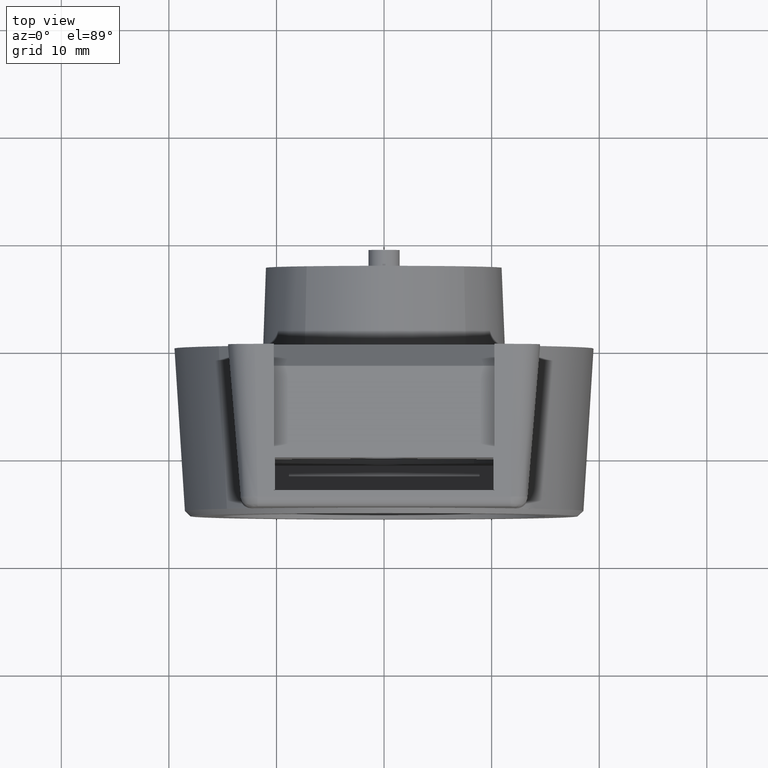
[diagram: clean part render]
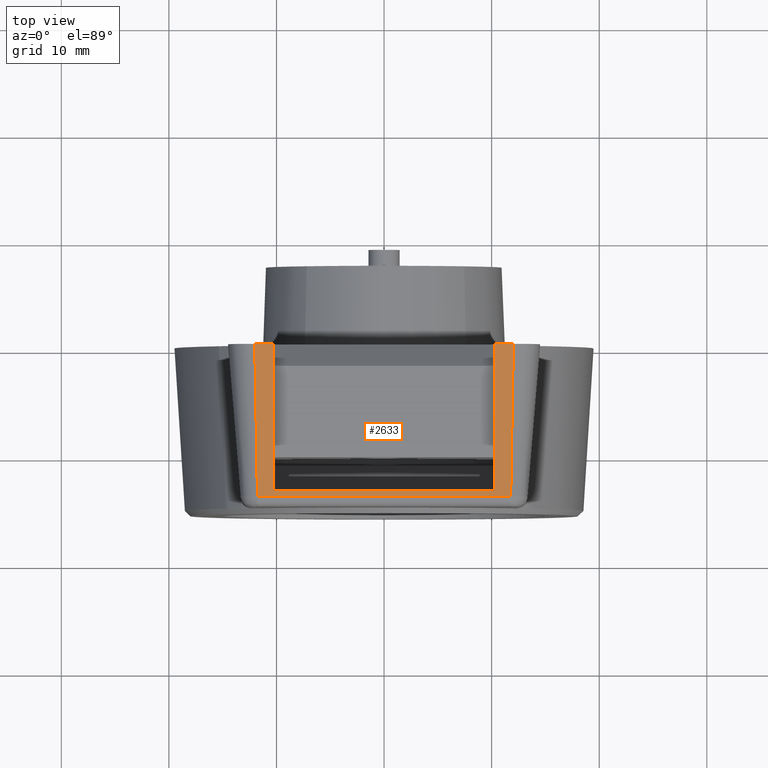
[diagram: same view with one face highlighted and labeled with its STEP entity id]
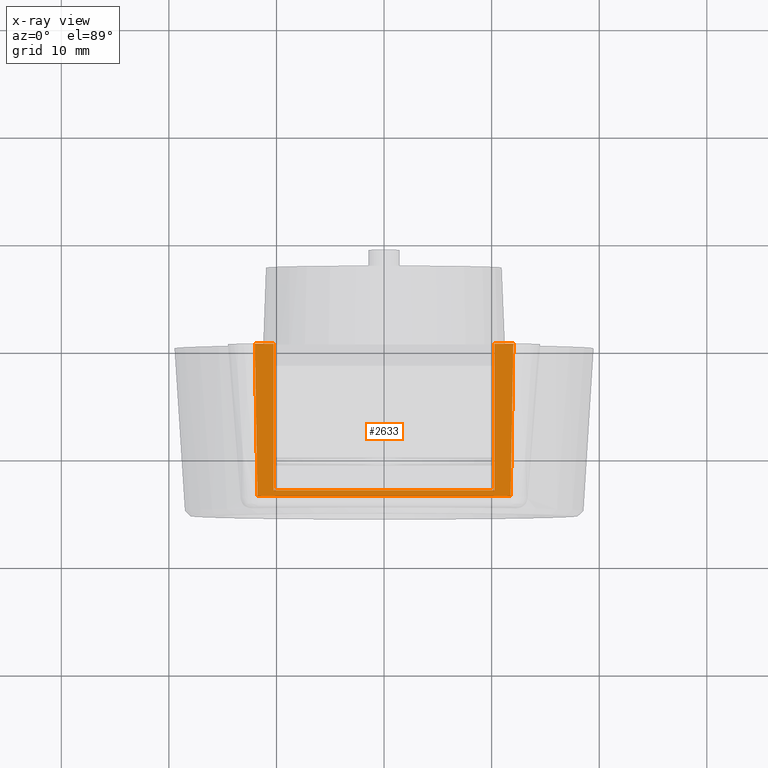
[diagram: x-ray of the same camera — body ghosted, the highlighted face saturated]
A machine part, top view. The second image highlights one B-rep face of the part: STEP entity #2633.
The next image is the same camera in x-ray: the body ghosted, the highlighted face saturated — about 0% of this face is hidden behind the body in this view.
In plain terms, the highlighted face is a freeform B-spline surface patch.
Its self-contained STEP definition (entity closure, byte-faithful):
#873=CARTESIAN_POINT('',(14.166070199675939,-11.769492727107981,-24.061995351736851));
#874=VERTEX_POINT('',#873);
#969=CARTESIAN_POINT('',(14.166070199675900,11.769492727107981,-24.061995351736702));
#970=VERTEX_POINT('',#969);
#992=CARTESIAN_POINT('',(14.166070199675900,11.769492727107981,-24.061995351736702));
#993=CARTESIAN_POINT('',(14.166070199675939,-11.769492727107981,-24.061995351736851));
#994=QUASI_UNIFORM_CURVE('',1,(#992,#993),.UNSPECIFIED.,.F.,.U.);
#995=EDGE_CURVE('',#970,#874,#994,.T.);
#1730=CARTESIAN_POINT('',(1.471786E-015,-12.018439708915380,-25.0));
#1731=VERTEX_POINT('',#1730);
#1732=CARTESIAN_POINT('',(14.166070199675939,-11.769492727107970,-24.061995351736840));
#1733=CARTESIAN_POINT('',(9.444046799783964,-11.852475054377109,-24.374663567824602));
#1734=CARTESIAN_POINT('',(4.722023399891985,-11.935457381646250,-24.687331783912359));
#1735=CARTESIAN_POINT('',(1.471786E-015,-12.018439708915380,-25.0));
#1736=B_SPLINE_CURVE_WITH_KNOTS('',3,(#1732,#1733,#1734,#1735),.UNSPECIFIED.,.F.,.U.,(4,4),(0.346894284039621,0.552590022212823),.UNSPECIFIED.);
#1737=EDGE_CURVE('',#874,#1731,#1736,.T.);
#1816=CARTESIAN_POINT('',(-1.471786E-015,12.018439708915380,-25.0));
#1817=VERTEX_POINT('',#1816);
#1818=CARTESIAN_POINT('',(-5.271933E-015,12.018439708915380,-24.999999999999961));
#1819=CARTESIAN_POINT('',(4.722023399891967,11.935457381646250,-24.687331783912210));
#1820=CARTESIAN_POINT('',(9.444046799783932,11.852475054377109,-24.374663567824459));
#1821=CARTESIAN_POINT('',(14.166070199675911,11.769492727107970,-24.061995351736691));
#1822=B_SPLINE_CURVE_WITH_KNOTS('',3,(#1818,#1819,#1820,#1821),.UNSPECIFIED.,.F.,.U.,(4,4),(0.447409977787178,0.653105715960380),.UNSPECIFIED.);
#1823=EDGE_CURVE('',#1817,#970,#1822,.T.);
#2097=CARTESIAN_POINT('',(13.600000000000000,-10.250000000000000,-24.099477622476250));
#2098=VERTEX_POINT('',#2097);
#2187=CARTESIAN_POINT('',(13.600000000000000,10.250000000000000,-24.099477622476250));
#2188=VERTEX_POINT('',#2187);
#2194=CARTESIAN_POINT('',(13.600000000000000,-10.250000000000000,-24.099477622476250));
#2195=CARTESIAN_POINT('',(13.600000000000000,10.250000000000000,-24.099477622476250));
#2196=QUASI_UNIFORM_CURVE('',1,(#2194,#2195),.UNSPECIFIED.,.F.,.U.);
#2197=EDGE_CURVE('',#2098,#2188,#2196,.T.);
#2356=CARTESIAN_POINT('',(0.0,10.250000000000000,-25.0));
#2357=VERTEX_POINT('',#2356);
#2363=CARTESIAN_POINT('',(13.600000000000000,10.250000000000000,-24.099477622476250));
#2364=CARTESIAN_POINT('',(0.0,10.250000000000000,-25.0));
#2365=QUASI_UNIFORM_CURVE('',1,(#2363,#2364),.UNSPECIFIED.,.F.,.U.);
#2366=EDGE_CURVE('',#2188,#2357,#2365,.T.);
#2378=CARTESIAN_POINT('',(0.0,-10.250000000000000,-25.0));
#2379=VERTEX_POINT('',#2378);
#2391=CARTESIAN_POINT('',(0.0,-10.250000000000000,-25.0));
#2392=CARTESIAN_POINT('',(13.600000000000000,-10.250000000000000,-24.099477622476250));
#2393=QUASI_UNIFORM_CURVE('',1,(#2391,#2392),.UNSPECIFIED.,.F.,.U.);
#2394=EDGE_CURVE('',#2379,#2098,#2393,.T.);
#2610=CARTESIAN_POINT('',(14.873665245712219,-13.219081252089220,-24.015142030179351));
#2611=CARTESIAN_POINT('',(-0.707595552654435,-13.219081252089220,-25.046853355103089));
#2612=CARTESIAN_POINT('',(14.873665245712219,13.219080607369881,-24.015142030179351));
#2613=CARTESIAN_POINT('',(-0.707595552654435,13.219080607369881,-25.046853355103089));
#2614=B_SPLINE_SURFACE_WITH_KNOTS('',1,1,((#2610,#2612),(#2611,#2613)),.UNSPECIFIED.,.F.,.F.,.U.,(2,2),(2,2),(0.0,15.615380761438169),(0.0,26.438161859459090),.UNSPECIFIED.);
#2615=ORIENTED_EDGE('',*,*,#1823,.T.);
#2616=ORIENTED_EDGE('',*,*,#995,.T.);
#2617=ORIENTED_EDGE('',*,*,#1737,.T.);
#2618=CARTESIAN_POINT('',(1.471786E-015,-12.018439708915380,-25.0));
#2619=CARTESIAN_POINT('',(0.0,-10.250000000000000,-25.0));
#2620=QUASI_UNIFORM_CURVE('',1,(#2618,#2619),.UNSPECIFIED.,.F.,.U.);
#2621=EDGE_CURVE('',#1731,#2379,#2620,.T.);
#2622=ORIENTED_EDGE('',*,*,#2621,.T.);
#2623=ORIENTED_EDGE('',*,*,#2394,.T.);
#2624=ORIENTED_EDGE('',*,*,#2197,.T.);
#2625=ORIENTED_EDGE('',*,*,#2366,.T.);
#2626=CARTESIAN_POINT('',(0.0,10.250000000000000,-25.0));
#2627=CARTESIAN_POINT('',(-1.471786E-015,12.018439708915380,-25.0));
#2628=QUASI_UNIFORM_CURVE('',1,(#2626,#2627),.UNSPECIFIED.,.F.,.U.);
#2629=EDGE_CURVE('',#2357,#1817,#2628,.T.);
#2630=ORIENTED_EDGE('',*,*,#2629,.T.);
#2631=EDGE_LOOP('',(#2615,#2616,#2617,#2622,#2623,#2624,#2625,#2630));
#2632=FACE_OUTER_BOUND('',#2631,.T.);
#2633=ADVANCED_FACE('',(#2632),#2614,.T.);